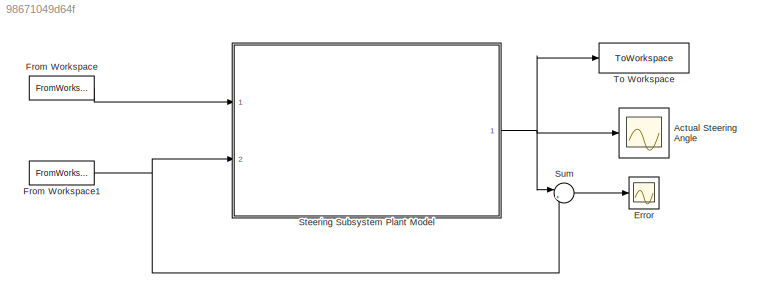
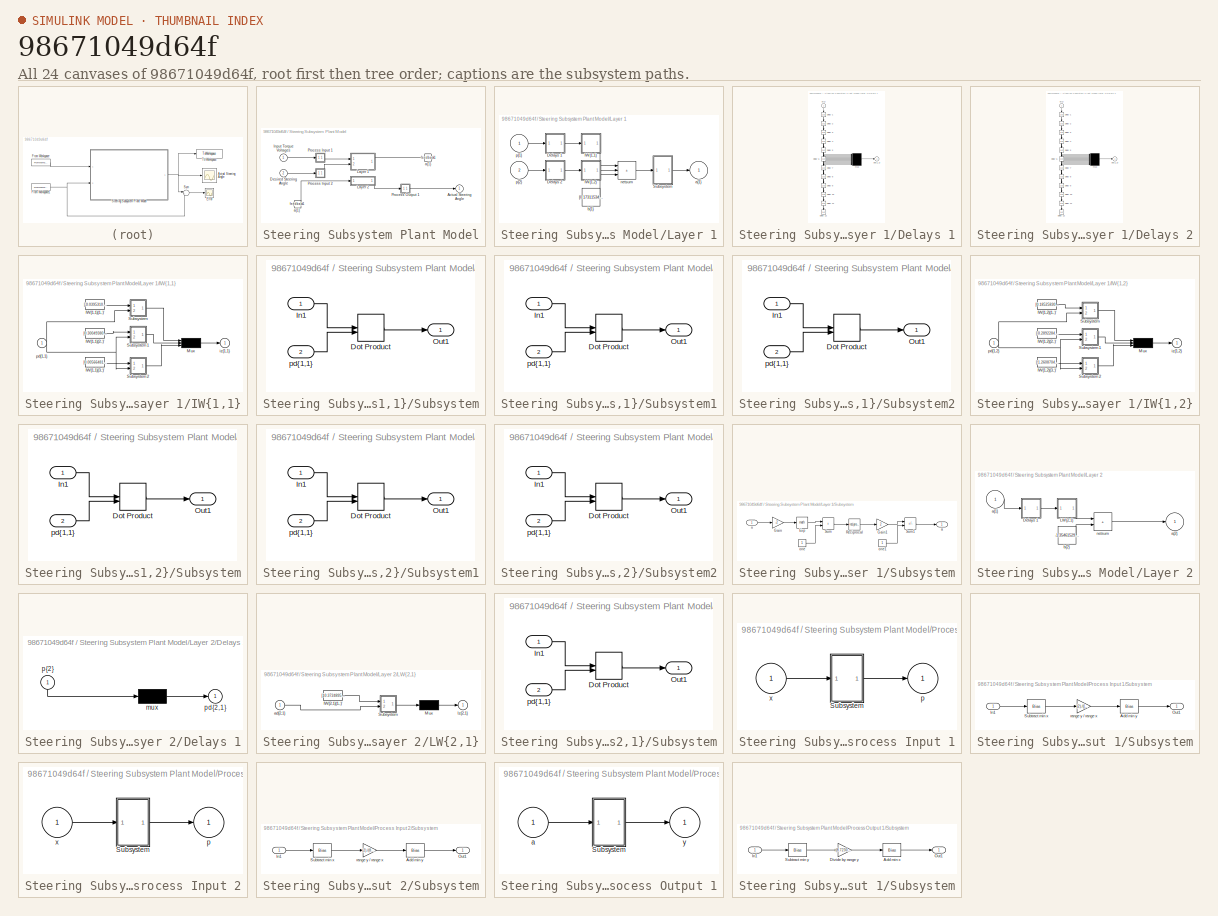
[diagram: thumbnail index - all 24 canvases of the model, root first then tree order]
MODEL slx_98671049d64f
KIND model
CONFIG AbsTol = auto
CONFIG EnableMultiTasking = off
CONFIG FixedStep = auto
CONFIG MaxStep = auto
CONFIG MinStep = auto
CONFIG RelTol = 1e-3
CONFIG SampleTimeConstraint = Unconstrained
CONFIG SolverName = VariableStepAuto
CONFIG StartTime = 0.0
CONFIG StopTime = 36
BLOCK [Scope] Actual Steering Angle
  Floating = off
  NumInputPorts = 1
  Ports = [1]
  ScopeSpecificationString = Simulink.scopes.TimeScopeBlockCfg('CurrentConfiguration', extmgr.ConfigurationSet(extmgr.Configuration('Core','General UI',true),extmgr.Configuration('Core','Source UI',true),extmgr.Configuration('Sources','WiredSimulink',true),extmgr.Configuration('Visuals','Time Domain',true,'SerializedDisplays',{struct('MinYLimReal','-24.47191','MaxYLimReal','14.88488','YLabelReal','','MinYLimMag','0.00000','Ma...<+1744ch>
BLOCK [Scope] Error
  Floating = off
  NumInputPorts = 1
  Ports = [1]
  ScopeSpecificationString = Simulink.scopes.TimeScopeBlockCfg('CurrentConfiguration', extmgr.ConfigurationSet(extmgr.Configuration('Core','General UI',true),extmgr.Configuration('Core','Source UI',true),extmgr.Configuration('Sources','WiredSimulink',true,'DataLoggingVariableName','ScopeData4'),extmgr.Configuration('Visuals','Time Domain',true,'SerializedDisplays',{struct('MinYLimReal','-0.19783','MaxYLimReal','0.17749','YLab...<+1437ch>
BLOCK [FromWorkspace] From Workspace
  SampleTime = 0.033
  VariableName = steeringlog
BLOCK [FromWorkspace] From Workspace1
  SampleTime = 0.033
  VariableName = steeringout
BLOCK [SubSystem] Steering Subsystem Plant Model
  Ports = [2, 1]
  RequestExecContextInheritance = off
BLOCK [From] Steering Subsystem Plant Model/ a{1} 
  GotoTag = feedback1
BLOCK [Outport] Steering Subsystem Plant Model/Actual Steering Angle
  InitialOutput = 0
BLOCK [Inport] Steering Subsystem Plant Model/Desired Steering Angle
  Port = 2
  PortDimensions = 1
BLOCK [Inport] Steering Subsystem Plant Model/Input Torque Voltages
  PortDimensions = 2
BLOCK [SubSystem] Steering Subsystem Plant Model/Layer 1
  Ports = [2, 1]
  RequestExecContextInheritance = off
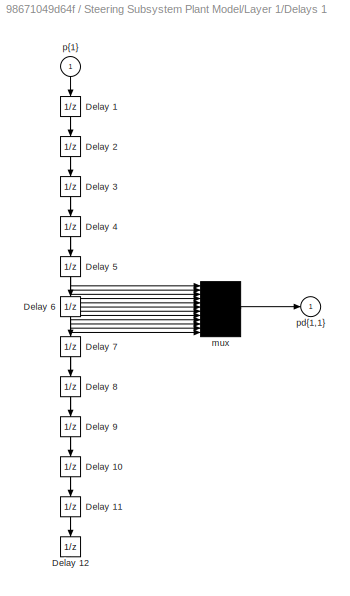
BLOCK [SubSystem] Steering Subsystem Plant Model/Layer 1/Delays 1
  Ports = [1, 1]
  RequestExecContextInheritance = off
BLOCK [UnitDelay] Steering Subsystem Plant Model/Layer 1/Delays 1/Delay 1
  InitialCondition = pi_input_1_delayed_1
  NameLocation = left
  SampleTime = -1
BLOCK [UnitDelay] Steering Subsystem Plant Model/Layer 1/Delays 1/Delay 10
  InitialCondition = pi_input_1_delayed_10
  NameLocation = left
  SampleTime = -1
BLOCK [UnitDelay] Steering Subsystem Plant Model/Layer 1/Delays 1/Delay 11
  InitialCondition = pi_input_1_delayed_11
  NameLocation = left
  SampleTime = -1
BLOCK [UnitDelay] Steering Subsystem Plant Model/Layer 1/Delays 1/Delay 12
  InitialCondition = pi_input_1_delayed_12
  NameLocation = left
  SampleTime = -1
BLOCK [UnitDelay] Steering Subsystem Plant Model/Layer 1/Delays 1/Delay 2
  InitialCondition = pi_input_1_delayed_2
  NameLocation = left
  SampleTime = -1
BLOCK [UnitDelay] Steering Subsystem Plant Model/Layer 1/Delays 1/Delay 3
  InitialCondition = pi_input_1_delayed_3
  NameLocation = left
  SampleTime = -1
BLOCK [UnitDelay] Steering Subsystem Plant Model/Layer 1/Delays 1/Delay 4
  InitialCondition = pi_input_1_delayed_4
  NameLocation = left
  SampleTime = -1
BLOCK [UnitDelay] Steering Subsystem Plant Model/Layer 1/Delays 1/Delay 5
  InitialCondition = pi_input_1_delayed_5
  NameLocation = left
  SampleTime = -1
BLOCK [UnitDelay] Steering Subsystem Plant Model/Layer 1/Delays 1/Delay 6
  InitialCondition = pi_input_1_delayed_6
  NameLocation = left
  SampleTime = -1
BLOCK [UnitDelay] Steering Subsystem Plant Model/Layer 1/Delays 1/Delay 7
  InitialCondition = pi_input_1_delayed_7
  NameLocation = left
  SampleTime = -1
BLOCK [UnitDelay] Steering Subsystem Plant Model/Layer 1/Delays 1/Delay 8
  InitialCondition = pi_input_1_delayed_8
  NameLocation = left
  SampleTime = -1
BLOCK [UnitDelay] Steering Subsystem Plant Model/Layer 1/Delays 1/Delay 9
  InitialCondition = pi_input_1_delayed_9
  NameLocation = left
  SampleTime = -1
BLOCK [Mux] Steering Subsystem Plant Model/Layer 1/Delays 1/mux
  Inputs = 12
  Ports = [12, 1]
BLOCK [Outport] Steering Subsystem Plant Model/Layer 1/Delays 1/pd{1,1}
BLOCK [Inport] Steering Subsystem Plant Model/Layer 1/Delays 1/p{1}
  NameLocation = left
  PortDimensions = 2
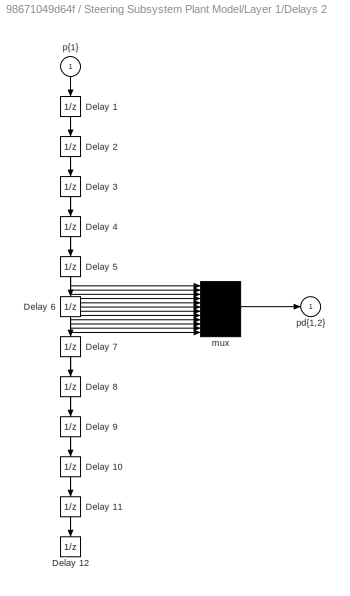
BLOCK [SubSystem] Steering Subsystem Plant Model/Layer 1/Delays 2
  Ports = [1, 1]
  RequestExecContextInheritance = off
BLOCK [UnitDelay] Steering Subsystem Plant Model/Layer 1/Delays 2/Delay 1
  InitialCondition = pi_input_2_delayed_1
  NameLocation = left
  SampleTime = -1
BLOCK [UnitDelay] Steering Subsystem Plant Model/Layer 1/Delays 2/Delay 10
  InitialCondition = pi_input_2_delayed_10
  NameLocation = left
  SampleTime = -1
BLOCK [UnitDelay] Steering Subsystem Plant Model/Layer 1/Delays 2/Delay 11
  InitialCondition = pi_input_2_delayed_11
  NameLocation = left
  SampleTime = -1
BLOCK [UnitDelay] Steering Subsystem Plant Model/Layer 1/Delays 2/Delay 12
  InitialCondition = pi_input_2_delayed_12
  NameLocation = left
  SampleTime = -1
BLOCK [UnitDelay] Steering Subsystem Plant Model/Layer 1/Delays 2/Delay 2
  InitialCondition = pi_input_2_delayed_2
  NameLocation = left
  SampleTime = -1
BLOCK [UnitDelay] Steering Subsystem Plant Model/Layer 1/Delays 2/Delay 3
  InitialCondition = pi_input_2_delayed_3
  NameLocation = left
  SampleTime = -1
BLOCK [UnitDelay] Steering Subsystem Plant Model/Layer 1/Delays 2/Delay 4
  InitialCondition = pi_input_2_delayed_4
  NameLocation = left
  SampleTime = -1
BLOCK [UnitDelay] Steering Subsystem Plant Model/Layer 1/Delays 2/Delay 5
  InitialCondition = pi_input_2_delayed_5
  NameLocation = left
  SampleTime = -1
BLOCK [UnitDelay] Steering Subsystem Plant Model/Layer 1/Delays 2/Delay 6
  InitialCondition = pi_input_2_delayed_6
  NameLocation = left
  SampleTime = -1
BLOCK [UnitDelay] Steering Subsystem Plant Model/Layer 1/Delays 2/Delay 7
  InitialCondition = pi_input_2_delayed_7
  NameLocation = left
  SampleTime = -1
BLOCK [UnitDelay] Steering Subsystem Plant Model/Layer 1/Delays 2/Delay 8
  InitialCondition = pi_input_2_delayed_8
  NameLocation = left
  SampleTime = -1
BLOCK [UnitDelay] Steering Subsystem Plant Model/Layer 1/Delays 2/Delay 9
  InitialCondition = pi_input_2_delayed_9
  NameLocation = left
  SampleTime = -1
BLOCK [Mux] Steering Subsystem Plant Model/Layer 1/Delays 2/mux
  Inputs = 12
  Ports = [12, 1]
BLOCK [Outport] Steering Subsystem Plant Model/Layer 1/Delays 2/pd{1,2}
BLOCK [Inport] Steering Subsystem Plant Model/Layer 1/Delays 2/p{1}
  NameLocation = left
  PortDimensions = 1
BLOCK [SubSystem] Steering Subsystem Plant Model/Layer 1/IW{1,1}
  Ports = [1, 1]
  RequestExecContextInheritance = off
BLOCK [Constant] Steering Subsystem Plant Model/Layer 1/IW{1,1}/IW{1,1}(1,:)'
  Value = [-0.039531069672798853364970028678726521320641040802001953125;-0.0383356031162210564300352189093246124684810638427734375;0.0258514399750559946411510026109681348316371440887451171875;0.04016755794020317182901891328583587892353534698486328125;0.02766231536147800706970656392513774335384368896484375;0.0303166326336630244375758280739319161511957645416259765625;0.0087272540060918633864073257200288935564...<+1052ch>
BLOCK [Constant] Steering Subsystem Plant Model/Layer 1/IW{1,1}/IW{1,1}(2,:)'
  Value = [0.300493806811286179314635091941454447805881500244140625;0.2906282354627103270416910163476131856441497802734375;-0.20524489213493646300179307218058966100215911865234375;-0.247446592053396974275614184080041013658046722412109375;-0.217516156689826767323125977782183326780796051025390625;-0.213925483436756824762170481335488148033618927001953125;-0.04639583892620995075883882918788003735244274139404296...<+989ch>
BLOCK [Constant] Steering Subsystem Plant Model/Layer 1/IW{1,1}/IW{1,1}(3,:)'
  Value = [0.005664811267568438390984653096893453039228916168212890625;-0.007588195356163471815003074283367823227308690547943115234375;-0.140245061154103733969122913549654185771942138671875;0.201420828649448380165409844266832806169986724853515625;-0.07728124705382323489377682790291146375238895416259765625;0.03786241173945463500682961921484093181788921356201171875;0.069274796945682975968239247777091804891824...<+1011ch>
BLOCK [Mux] Steering Subsystem Plant Model/Layer 1/IW{1,1}/Mux
  Inputs = 3
  Ports = [3, 1]
BLOCK [SubSystem] Steering Subsystem Plant Model/Layer 1/IW{1,1}/Subsystem
  Ports = [2, 1]
  RequestExecContextInheritance = off
BLOCK [DotProduct] Steering Subsystem Plant Model/Layer 1/IW{1,1}/Subsystem/Dot Product
  OutDataTypeStr = Inherit: Inherit via internal rule
BLOCK [Inport] Steering Subsystem Plant Model/Layer 1/IW{1,1}/Subsystem/In1
BLOCK [Outport] Steering Subsystem Plant Model/Layer 1/IW{1,1}/Subsystem/Out1
  VectorParamsAs1DForOutWhenUnconnected = off
BLOCK [Inport] Steering Subsystem Plant Model/Layer 1/IW{1,1}/Subsystem/pd{1,1}
  Port = 2
BLOCK [SubSystem] Steering Subsystem Plant Model/Layer 1/IW{1,1}/Subsystem1
  Ports = [2, 1]
  RequestExecContextInheritance = off
BLOCK [DotProduct] Steering Subsystem Plant Model/Layer 1/IW{1,1}/Subsystem1/Dot Product
  OutDataTypeStr = Inherit: Inherit via internal rule
BLOCK [Inport] Steering Subsystem Plant Model/Layer 1/IW{1,1}/Subsystem1/In1
BLOCK [Outport] Steering Subsystem Plant Model/Layer 1/IW{1,1}/Subsystem1/Out1
  VectorParamsAs1DForOutWhenUnconnected = off
BLOCK [Inport] Steering Subsystem Plant Model/Layer 1/IW{1,1}/Subsystem1/pd{1,1}
  Port = 2
BLOCK [SubSystem] Steering Subsystem Plant Model/Layer 1/IW{1,1}/Subsystem2
  Ports = [2, 1]
  RequestExecContextInheritance = off
BLOCK [DotProduct] Steering Subsystem Plant Model/Layer 1/IW{1,1}/Subsystem2/Dot Product
  OutDataTypeStr = Inherit: Inherit via internal rule
BLOCK [Inport] Steering Subsystem Plant Model/Layer 1/IW{1,1}/Subsystem2/In1
BLOCK [Outport] Steering Subsystem Plant Model/Layer 1/IW{1,1}/Subsystem2/Out1
  VectorParamsAs1DForOutWhenUnconnected = off
BLOCK [Inport] Steering Subsystem Plant Model/Layer 1/IW{1,1}/Subsystem2/pd{1,1}
  Port = 2
BLOCK [Outport] Steering Subsystem Plant Model/Layer 1/IW{1,1}/iz{1,1}
BLOCK [Inport] Steering Subsystem Plant Model/Layer 1/IW{1,1}/pd{1,1}
  PortDimensions = 24
BLOCK [SubSystem] Steering Subsystem Plant Model/Layer 1/IW{1,2}
  Ports = [1, 1]
  RequestExecContextInheritance = off
BLOCK [Constant] Steering Subsystem Plant Model/Layer 1/IW{1,2}/IW{1,2}(1,:)'
  Value = [0.18525830358054962143654620376764796674251556396484375;-0.06296079993389237794421120497645461000502109527587890625;-0.026864741354813446994054260130724287591874599456787109375;0.004920707395092008447357034839342304621823132038116455078125;0.000690318672413117902231238787180700455792248249053955078125;0.0656502235137236545003958099187002517282962799072265625;-0.07900536104101656131870612398415687...<+321ch>
BLOCK [Constant] Steering Subsystem Plant Model/Layer 1/IW{1,2}/IW{1,2}(2,:)'
  Value = [-0.2892284304667980254777148729772306978702545166015625;-0.144469847169483245341581323373247869312763214111328125;0.132050924434647776184448275671456940472126007080078125;0.185425035338810550999966153540299274027347564697265625;-0.01583121468960459188313194545116857625544071197509765625;-0.453294675076582331829655458932393230497837066650390625;0.590966671517218267162263600766891613602638244628906...<+279ch>
BLOCK [Constant] Steering Subsystem Plant Model/Layer 1/IW{1,2}/IW{1,2}(3,:)'
  Value = [-1.260870467974438469127562711946666240692138671875;-0.70408401856980862287826994361239485442638397216796875;0.135597500972626405779664082729141227900981903076171875;0.62336622325053980819831167536904104053974151611328125;0.6018519755574984753110356905381195247173309326171875;0.332602675447910389738837011464056558907032012939453125;0.090540711065608292518192001807619817554950714111328125;0.001732...<+293ch>
BLOCK [Mux] Steering Subsystem Plant Model/Layer 1/IW{1,2}/Mux
  Inputs = 3
  Ports = [3, 1]
BLOCK [SubSystem] Steering Subsystem Plant Model/Layer 1/IW{1,2}/Subsystem
  Ports = [2, 1]
  RequestExecContextInheritance = off
BLOCK [DotProduct] Steering Subsystem Plant Model/Layer 1/IW{1,2}/Subsystem/Dot Product
  OutDataTypeStr = Inherit: Inherit via internal rule
BLOCK [Inport] Steering Subsystem Plant Model/Layer 1/IW{1,2}/Subsystem/In1
BLOCK [Outport] Steering Subsystem Plant Model/Layer 1/IW{1,2}/Subsystem/Out1
  VectorParamsAs1DForOutWhenUnconnected = off
BLOCK [Inport] Steering Subsystem Plant Model/Layer 1/IW{1,2}/Subsystem/pd{1,1}
  Port = 2
BLOCK [SubSystem] Steering Subsystem Plant Model/Layer 1/IW{1,2}/Subsystem1
  Ports = [2, 1]
  RequestExecContextInheritance = off
BLOCK [DotProduct] Steering Subsystem Plant Model/Layer 1/IW{1,2}/Subsystem1/Dot Product
  OutDataTypeStr = Inherit: Inherit via internal rule
BLOCK [Inport] Steering Subsystem Plant Model/Layer 1/IW{1,2}/Subsystem1/In1
BLOCK [Outport] Steering Subsystem Plant Model/Layer 1/IW{1,2}/Subsystem1/Out1
  VectorParamsAs1DForOutWhenUnconnected = off
BLOCK [Inport] Steering Subsystem Plant Model/Layer 1/IW{1,2}/Subsystem1/pd{1,1}
  Port = 2
BLOCK [SubSystem] Steering Subsystem Plant Model/Layer 1/IW{1,2}/Subsystem2
  Ports = [2, 1]
  RequestExecContextInheritance = off
BLOCK [DotProduct] Steering Subsystem Plant Model/Layer 1/IW{1,2}/Subsystem2/Dot Product
  OutDataTypeStr = Inherit: Inherit via internal rule
BLOCK [Inport] Steering Subsystem Plant Model/Layer 1/IW{1,2}/Subsystem2/In1
BLOCK [Outport] Steering Subsystem Plant Model/Layer 1/IW{1,2}/Subsystem2/Out1
  VectorParamsAs1DForOutWhenUnconnected = off
BLOCK [Inport] Steering Subsystem Plant Model/Layer 1/IW{1,2}/Subsystem2/pd{1,1}
  Port = 2
BLOCK [Outport] Steering Subsystem Plant Model/Layer 1/IW{1,2}/iz{1,2}
BLOCK [Inport] Steering Subsystem Plant Model/Layer 1/IW{1,2}/pd{1,2}
  PortDimensions = 12
BLOCK [SubSystem] Steering Subsystem Plant Model/Layer 1/Subsystem
  Ports = [1, 1]
  RequestExecContextInheritance = off
BLOCK [Math] Steering Subsystem Plant Model/Layer 1/Subsystem/Exp
  Ports = [1, 1]
  SignedPower = on
BLOCK [Gain] Steering Subsystem Plant Model/Layer 1/Subsystem/Gain
  Gain = -2
  OutDataTypeStr = Inherit: Same as input
  ParamDataTypeStr = Inherit: Same as input
  SaturateOnIntegerOverflow = on
BLOCK [Gain] Steering Subsystem Plant Model/Layer 1/Subsystem/Gain1
  Gain = 2
  OutDataTypeStr = Inherit: Same as input
  ParamDataTypeStr = Inherit: Same as input
  SaturateOnIntegerOverflow = on
BLOCK [Math] Steering Subsystem Plant Model/Layer 1/Subsystem/Reciprocal
  Operator = reciprocal
  Ports = [1, 1]
  SignedPower = on
BLOCK [Sum] Steering Subsystem Plant Model/Layer 1/Subsystem/Sum
  IconShape = rectangular
  InputSameDT = on
  OutDataTypeStr = Inherit: Same as first input
  Ports = [2, 1]
  SaturateOnIntegerOverflow = on
BLOCK [Sum] Steering Subsystem Plant Model/Layer 1/Subsystem/Sum1
  IconShape = rectangular
  InputSameDT = on
  Inputs = +-
  OutDataTypeStr = Inherit: Same as first input
  Ports = [2, 1]
  SaturateOnIntegerOverflow = on
BLOCK [Outport] Steering Subsystem Plant Model/Layer 1/Subsystem/a
  InitialOutput = 0
  VectorParamsAs1DForOutWhenUnconnected = off
BLOCK [Inport] Steering Subsystem Plant Model/Layer 1/Subsystem/n
BLOCK [Constant] Steering Subsystem Plant Model/Layer 1/Subsystem/one
BLOCK [Constant] Steering Subsystem Plant Model/Layer 1/Subsystem/one1
BLOCK [Outport] Steering Subsystem Plant Model/Layer 1/a{1}
  InitialOutput = [0;0;0]
BLOCK [Constant] Steering Subsystem Plant Model/Layer 1/b{1}
  Value = [0.17311534232580039205373623190098442137241363525390625;-0.2904719849483103910614545384305529296398162841796875;-0.029234530767047968435878857462739688344299793243408203125]
BLOCK [Sum] Steering Subsystem Plant Model/Layer 1/netsum
  IconShape = rectangular
  InputSameDT = on
  Inputs = 3
  OutDataTypeStr = Inherit: Same as first input
  Ports = [3, 1]
  SaturateOnIntegerOverflow = on
BLOCK [Inport] Steering Subsystem Plant Model/Layer 1/p{1}
  PortDimensions = 2
BLOCK [Inport] Steering Subsystem Plant Model/Layer 1/p{2}
  Port = 2
  PortDimensions = 1
BLOCK [SubSystem] Steering Subsystem Plant Model/Layer 2
  Ports = [1, 1]
  RequestExecContextInheritance = off
BLOCK [SubSystem] Steering Subsystem Plant Model/Layer 2/Delays 1
  Ports = [1, 1]
  RequestExecContextInheritance = off
BLOCK [Mux] Steering Subsystem Plant Model/Layer 2/Delays 1/mux
  Inputs = 1
  Ports = [1, 1]
BLOCK [Outport] Steering Subsystem Plant Model/Layer 2/Delays 1/pd{2,1}
BLOCK [Inport] Steering Subsystem Plant Model/Layer 2/Delays 1/p{2}
  NameLocation = left
  PortDimensions = 3
BLOCK [SubSystem] Steering Subsystem Plant Model/Layer 2/LW{2,1}
  Ports = [1, 1]
  RequestExecContextInheritance = off
BLOCK [Constant] Steering Subsystem Plant Model/Layer 2/LW{2,1}/IW{2,1}(1,:)'
  Value = [10.372489506372101430997645366005599498748779296875;1.5243353237190262472466883991728536784648895263671875;-0.257200510664398585003453945319051854312419891357421875]
BLOCK [Mux] Steering Subsystem Plant Model/Layer 2/LW{2,1}/Mux
  Inputs = 1
  Ports = [1, 1]
BLOCK [SubSystem] Steering Subsystem Plant Model/Layer 2/LW{2,1}/Subsystem
  Ports = [2, 1]
  RequestExecContextInheritance = off
BLOCK [DotProduct] Steering Subsystem Plant Model/Layer 2/LW{2,1}/Subsystem/Dot Product
  OutDataTypeStr = Inherit: Inherit via internal rule
BLOCK [Inport] Steering Subsystem Plant Model/Layer 2/LW{2,1}/Subsystem/In1
BLOCK [Outport] Steering Subsystem Plant Model/Layer 2/LW{2,1}/Subsystem/Out1
  VectorParamsAs1DForOutWhenUnconnected = off
BLOCK [Inport] Steering Subsystem Plant Model/Layer 2/LW{2,1}/Subsystem/pd{1,1}
  Port = 2
BLOCK [Inport] Steering Subsystem Plant Model/Layer 2/LW{2,1}/ad{2,1}
  PortDimensions = 3
BLOCK [Outport] Steering Subsystem Plant Model/Layer 2/LW{2,1}/lz{2,1}
BLOCK [Inport] Steering Subsystem Plant Model/Layer 2/a{1} 
  PortDimensions = 3
BLOCK [Outport] Steering Subsystem Plant Model/Layer 2/a{2}
  InitialOutput = 0
BLOCK [Constant] Steering Subsystem Plant Model/Layer 2/b{2}
  Value = -1.3546152906763440082471561254351399838924407958984375
BLOCK [Sum] Steering Subsystem Plant Model/Layer 2/netsum
  IconShape = rectangular
  InputSameDT = on
  Inputs = 2
  OutDataTypeStr = Inherit: Same as first input
  Ports = [2, 1]
  SaturateOnIntegerOverflow = on
BLOCK [SubSystem] Steering Subsystem Plant Model/Process Input 1
  Ports = [1, 1]
  RequestExecContextInheritance = off
BLOCK [SubSystem] Steering Subsystem Plant Model/Process Input 1/Subsystem
  Ports = [1, 1]
  RequestExecContextInheritance = off
BLOCK [Bias] Steering Subsystem Plant Model/Process Input 1/Subsystem/Add min y
  Bias = -1
  SaturateOnIntegerOverflow = off
BLOCK [Inport] Steering Subsystem Plant Model/Process Input 1/Subsystem/In1
BLOCK [Outport] Steering Subsystem Plant Model/Process Input 1/Subsystem/Out1
BLOCK [Bias] Steering Subsystem Plant Model/Process Input 1/Subsystem/Subtract min x
  Bias = -[1.30299999999999993605115378159;1.3669999999999999928945726424]
  SaturateOnIntegerOverflow = off
BLOCK [Gain] Steering Subsystem Plant Model/Process Input 1/Subsystem/range y // range x
  Gain = (2)./([3.65499999999999980460074766597;3.69099999999999983657517077518]-[1.30299999999999993605115378159;1.3669999999999999928945726424])
BLOCK [Outport] Steering Subsystem Plant Model/Process Input 1/p
  PortDimensions = 2
BLOCK [Inport] Steering Subsystem Plant Model/Process Input 1/x
  PortDimensions = 2
BLOCK [SubSystem] Steering Subsystem Plant Model/Process Input 2
  Ports = [1, 1]
  RequestExecContextInheritance = off
BLOCK [SubSystem] Steering Subsystem Plant Model/Process Input 2/Subsystem
  Ports = [1, 1]
  RequestExecContextInheritance = off
BLOCK [Bias] Steering Subsystem Plant Model/Process Input 2/Subsystem/Add min y
  Bias = -1
  SaturateOnIntegerOverflow = off
BLOCK [Inport] Steering Subsystem Plant Model/Process Input 2/Subsystem/In1
BLOCK [Outport] Steering Subsystem Plant Model/Process Input 2/Subsystem/Out1
BLOCK [Bias] Steering Subsystem Plant Model/Process Input 2/Subsystem/Subtract min x
  Bias = -(-8.62199999999999988631316227838)
  SaturateOnIntegerOverflow = off
BLOCK [Gain] Steering Subsystem Plant Model/Process Input 2/Subsystem/range y // range x
  Gain = (2)./(8.72300000000000075317529990571-(-8.62199999999999988631316227838))
BLOCK [Outport] Steering Subsystem Plant Model/Process Input 2/p
  PortDimensions = 1
BLOCK [Inport] Steering Subsystem Plant Model/Process Input 2/x
  PortDimensions = 1
BLOCK [SubSystem] Steering Subsystem Plant Model/Process Output 1
  Ports = [1, 1]
  RequestExecContextInheritance = off
BLOCK [SubSystem] Steering Subsystem Plant Model/Process Output 1/Subsystem
  Ports = [1, 1]
  RequestExecContextInheritance = off
BLOCK [Bias] Steering Subsystem Plant Model/Process Output 1/Subsystem/Add min x
  Bias = -8.62199999999999988631316227838
  SaturateOnIntegerOverflow = off
BLOCK [Gain] Steering Subsystem Plant Model/Process Output 1/Subsystem/Divide by range y
  Gain = (8.72300000000000075317529990571-(-8.62199999999999988631316227838))./(2)
BLOCK [Inport] Steering Subsystem Plant Model/Process Output 1/Subsystem/In1
BLOCK [Outport] Steering Subsystem Plant Model/Process Output 1/Subsystem/Out1
BLOCK [Bias] Steering Subsystem Plant Model/Process Output 1/Subsystem/Subtract min y
  Bias = 1
  SaturateOnIntegerOverflow = off
BLOCK [Inport] Steering Subsystem Plant Model/Process Output 1/a
  PortDimensions = 1
BLOCK [Outport] Steering Subsystem Plant Model/Process Output 1/y
  PortDimensions = 1
BLOCK [Goto] Steering Subsystem Plant Model/a{1}
  GotoTag = feedback1
BLOCK [Sum] Sum
  Inputs = |+-
  Ports = [2, 1]
BLOCK [ToWorkspace] To Workspace
  FixptAsFi = on
  MaxDataPoints = inf
  Ports = [1]
  SampleTime = -1
  SaveFormat = Timeseries
  VariableName = actualsteering
NET From Workspace1:1 -> Steering Subsystem Plant Model:2, Sum:2
LINE From Workspace:1 -> Steering Subsystem Plant Model:1
LINE Steering Subsystem Plant Model/ a{1} :1 -> Steering Subsystem Plant Model/Layer 2:1
LINE Steering Subsystem Plant Model/Desired Steering Angle:1 -> Steering Subsystem Plant Model/Process Input 2:1
LINE Steering Subsystem Plant Model/Input Torque Voltages:1 -> Steering Subsystem Plant Model/Process Input 1:1
NET Steering Subsystem Plant Model/Layer 1/Delays 1/Delay 10:1 -> Steering Subsystem Plant Model/Layer 1/Delays 1/Delay 11:1, Steering Subsystem Plant Model/Layer 1/Delays 1/mux:10
NET Steering Subsystem Plant Model/Layer 1/Delays 1/Delay 11:1 -> Steering Subsystem Plant Model/Layer 1/Delays 1/Delay 12:1, Steering Subsystem Plant Model/Layer 1/Delays 1/mux:11
LINE Steering Subsystem Plant Model/Layer 1/Delays 1/Delay 12:1 -> Steering Subsystem Plant Model/Layer 1/Delays 1/mux:12
NET Steering Subsystem Plant Model/Layer 1/Delays 1/Delay 1:1 -> Steering Subsystem Plant Model/Layer 1/Delays 1/Delay 2:1, Steering Subsystem Plant Model/Layer 1/Delays 1/mux:1
NET Steering Subsystem Plant Model/Layer 1/Delays 1/Delay 2:1 -> Steering Subsystem Plant Model/Layer 1/Delays 1/Delay 3:1, Steering Subsystem Plant Model/Layer 1/Delays 1/mux:2
NET Steering Subsystem Plant Model/Layer 1/Delays 1/Delay 3:1 -> Steering Subsystem Plant Model/Layer 1/Delays 1/Delay 4:1, Steering Subsystem Plant Model/Layer 1/Delays 1/mux:3
NET Steering Subsystem Plant Model/Layer 1/Delays 1/Delay 4:1 -> Steering Subsystem Plant Model/Layer 1/Delays 1/Delay 5:1, Steering Subsystem Plant Model/Layer 1/Delays 1/mux:4
NET Steering Subsystem Plant Model/Layer 1/Delays 1/Delay 5:1 -> Steering Subsystem Plant Model/Layer 1/Delays 1/Delay 6:1, Steering Subsystem Plant Model/Layer 1/Delays 1/mux:5
NET Steering Subsystem Plant Model/Layer 1/Delays 1/Delay 6:1 -> Steering Subsystem Plant Model/Layer 1/Delays 1/Delay 7:1, Steering Subsystem Plant Model/Layer 1/Delays 1/mux:6
NET Steering Subsystem Plant Model/Layer 1/Delays 1/Delay 7:1 -> Steering Subsystem Plant Model/Layer 1/Delays 1/Delay 8:1, Steering Subsystem Plant Model/Layer 1/Delays 1/mux:7
NET Steering Subsystem Plant Model/Layer 1/Delays 1/Delay 8:1 -> Steering Subsystem Plant Model/Layer 1/Delays 1/Delay 9:1, Steering Subsystem Plant Model/Layer 1/Delays 1/mux:8
NET Steering Subsystem Plant Model/Layer 1/Delays 1/Delay 9:1 -> Steering Subsystem Plant Model/Layer 1/Delays 1/Delay 10:1, Steering Subsystem Plant Model/Layer 1/Delays 1/mux:9
LINE Steering Subsystem Plant Model/Layer 1/Delays 1/mux:1 -> Steering Subsystem Plant Model/Layer 1/Delays 1/pd{1,1}:1
LINE Steering Subsystem Plant Model/Layer 1/Delays 1/p{1}:1 -> Steering Subsystem Plant Model/Layer 1/Delays 1/Delay 1:1
LINE Steering Subsystem Plant Model/Layer 1/Delays 1:1 -> Steering Subsystem Plant Model/Layer 1/IW{1,1}:1
NET Steering Subsystem Plant Model/Layer 1/Delays 2/Delay 10:1 -> Steering Subsystem Plant Model/Layer 1/Delays 2/Delay 11:1, Steering Subsystem Plant Model/Layer 1/Delays 2/mux:10
NET Steering Subsystem Plant Model/Layer 1/Delays 2/Delay 11:1 -> Steering Subsystem Plant Model/Layer 1/Delays 2/Delay 12:1, Steering Subsystem Plant Model/Layer 1/Delays 2/mux:11
LINE Steering Subsystem Plant Model/Layer 1/Delays 2/Delay 12:1 -> Steering Subsystem Plant Model/Layer 1/Delays 2/mux:12
NET Steering Subsystem Plant Model/Layer 1/Delays 2/Delay 1:1 -> Steering Subsystem Plant Model/Layer 1/Delays 2/Delay 2:1, Steering Subsystem Plant Model/Layer 1/Delays 2/mux:1
NET Steering Subsystem Plant Model/Layer 1/Delays 2/Delay 2:1 -> Steering Subsystem Plant Model/Layer 1/Delays 2/Delay 3:1, Steering Subsystem Plant Model/Layer 1/Delays 2/mux:2
NET Steering Subsystem Plant Model/Layer 1/Delays 2/Delay 3:1 -> Steering Subsystem Plant Model/Layer 1/Delays 2/Delay 4:1, Steering Subsystem Plant Model/Layer 1/Delays 2/mux:3
NET Steering Subsystem Plant Model/Layer 1/Delays 2/Delay 4:1 -> Steering Subsystem Plant Model/Layer 1/Delays 2/Delay 5:1, Steering Subsystem Plant Model/Layer 1/Delays 2/mux:4
NET Steering Subsystem Plant Model/Layer 1/Delays 2/Delay 5:1 -> Steering Subsystem Plant Model/Layer 1/Delays 2/Delay 6:1, Steering Subsystem Plant Model/Layer 1/Delays 2/mux:5
NET Steering Subsystem Plant Model/Layer 1/Delays 2/Delay 6:1 -> Steering Subsystem Plant Model/Layer 1/Delays 2/Delay 7:1, Steering Subsystem Plant Model/Layer 1/Delays 2/mux:6
NET Steering Subsystem Plant Model/Layer 1/Delays 2/Delay 7:1 -> Steering Subsystem Plant Model/Layer 1/Delays 2/Delay 8:1, Steering Subsystem Plant Model/Layer 1/Delays 2/mux:7
NET Steering Subsystem Plant Model/Layer 1/Delays 2/Delay 8:1 -> Steering Subsystem Plant Model/Layer 1/Delays 2/Delay 9:1, Steering Subsystem Plant Model/Layer 1/Delays 2/mux:8
NET Steering Subsystem Plant Model/Layer 1/Delays 2/Delay 9:1 -> Steering Subsystem Plant Model/Layer 1/Delays 2/Delay 10:1, Steering Subsystem Plant Model/Layer 1/Delays 2/mux:9
LINE Steering Subsystem Plant Model/Layer 1/Delays 2/mux:1 -> Steering Subsystem Plant Model/Layer 1/Delays 2/pd{1,2}:1
LINE Steering Subsystem Plant Model/Layer 1/Delays 2/p{1}:1 -> Steering Subsystem Plant Model/Layer 1/Delays 2/Delay 1:1
LINE Steering Subsystem Plant Model/Layer 1/Delays 2:1 -> Steering Subsystem Plant Model/Layer 1/IW{1,2}:1
LINE Steering Subsystem Plant Model/Layer 1/IW{1,1}/IW{1,1}(1,:)':1 -> Steering Subsystem Plant Model/Layer 1/IW{1,1}/Subsystem:1
LINE Steering Subsystem Plant Model/Layer 1/IW{1,1}/IW{1,1}(2,:)':1 -> Steering Subsystem Plant Model/Layer 1/IW{1,1}/Subsystem1:1
LINE Steering Subsystem Plant Model/Layer 1/IW{1,1}/IW{1,1}(3,:)':1 -> Steering Subsystem Plant Model/Layer 1/IW{1,1}/Subsystem2:1
LINE Steering Subsystem Plant Model/Layer 1/IW{1,1}/Mux:1 -> Steering Subsystem Plant Model/Layer 1/IW{1,1}/iz{1,1}:1
LINE Steering Subsystem Plant Model/Layer 1/IW{1,1}/Subsystem/Dot Product:1 -> Steering Subsystem Plant Model/Layer 1/IW{1,1}/Subsystem/Out1:1
LINE Steering Subsystem Plant Model/Layer 1/IW{1,1}/Subsystem/In1:1 -> Steering Subsystem Plant Model/Layer 1/IW{1,1}/Subsystem/Dot Product:1
LINE Steering Subsystem Plant Model/Layer 1/IW{1,1}/Subsystem/pd{1,1}:1 -> Steering Subsystem Plant Model/Layer 1/IW{1,1}/Subsystem/Dot Product:2
LINE Steering Subsystem Plant Model/Layer 1/IW{1,1}/Subsystem1/Dot Product:1 -> Steering Subsystem Plant Model/Layer 1/IW{1,1}/Subsystem1/Out1:1
LINE Steering Subsystem Plant Model/Layer 1/IW{1,1}/Subsystem1/In1:1 -> Steering Subsystem Plant Model/Layer 1/IW{1,1}/Subsystem1/Dot Product:1
LINE Steering Subsystem Plant Model/Layer 1/IW{1,1}/Subsystem1/pd{1,1}:1 -> Steering Subsystem Plant Model/Layer 1/IW{1,1}/Subsystem1/Dot Product:2
LINE Steering Subsystem Plant Model/Layer 1/IW{1,1}/Subsystem1:1 -> Steering Subsystem Plant Model/Layer 1/IW{1,1}/Mux:2
LINE Steering Subsystem Plant Model/Layer 1/IW{1,1}/Subsystem2/Dot Product:1 -> Steering Subsystem Plant Model/Layer 1/IW{1,1}/Subsystem2/Out1:1
LINE Steering Subsystem Plant Model/Layer 1/IW{1,1}/Subsystem2/In1:1 -> Steering Subsystem Plant Model/Layer 1/IW{1,1}/Subsystem2/Dot Product:1
LINE Steering Subsystem Plant Model/Layer 1/IW{1,1}/Subsystem2/pd{1,1}:1 -> Steering Subsystem Plant Model/Layer 1/IW{1,1}/Subsystem2/Dot Product:2
LINE Steering Subsystem Plant Model/Layer 1/IW{1,1}/Subsystem2:1 -> Steering Subsystem Plant Model/Layer 1/IW{1,1}/Mux:3
LINE Steering Subsystem Plant Model/Layer 1/IW{1,1}/Subsystem:1 -> Steering Subsystem Plant Model/Layer 1/IW{1,1}/Mux:1
NET Steering Subsystem Plant Model/Layer 1/IW{1,1}/pd{1,1}:1 -> Steering Subsystem Plant Model/Layer 1/IW{1,1}/Subsystem1:2, Steering Subsystem Plant Model/Layer 1/IW{1,1}/Subsystem2:2, Steering Subsystem Plant Model/Layer 1/IW{1,1}/Subsystem:2
LINE Steering Subsystem Plant Model/Layer 1/IW{1,1}:1 -> Steering Subsystem Plant Model/Layer 1/netsum:1
LINE Steering Subsystem Plant Model/Layer 1/IW{1,2}/IW{1,2}(1,:)':1 -> Steering Subsystem Plant Model/Layer 1/IW{1,2}/Subsystem:1
LINE Steering Subsystem Plant Model/Layer 1/IW{1,2}/IW{1,2}(2,:)':1 -> Steering Subsystem Plant Model/Layer 1/IW{1,2}/Subsystem1:1
LINE Steering Subsystem Plant Model/Layer 1/IW{1,2}/IW{1,2}(3,:)':1 -> Steering Subsystem Plant Model/Layer 1/IW{1,2}/Subsystem2:1
LINE Steering Subsystem Plant Model/Layer 1/IW{1,2}/Mux:1 -> Steering Subsystem Plant Model/Layer 1/IW{1,2}/iz{1,2}:1
LINE Steering Subsystem Plant Model/Layer 1/IW{1,2}/Subsystem/Dot Product:1 -> Steering Subsystem Plant Model/Layer 1/IW{1,2}/Subsystem/Out1:1
LINE Steering Subsystem Plant Model/Layer 1/IW{1,2}/Subsystem/In1:1 -> Steering Subsystem Plant Model/Layer 1/IW{1,2}/Subsystem/Dot Product:1
LINE Steering Subsystem Plant Model/Layer 1/IW{1,2}/Subsystem/pd{1,1}:1 -> Steering Subsystem Plant Model/Layer 1/IW{1,2}/Subsystem/Dot Product:2
LINE Steering Subsystem Plant Model/Layer 1/IW{1,2}/Subsystem1/Dot Product:1 -> Steering Subsystem Plant Model/Layer 1/IW{1,2}/Subsystem1/Out1:1
LINE Steering Subsystem Plant Model/Layer 1/IW{1,2}/Subsystem1/In1:1 -> Steering Subsystem Plant Model/Layer 1/IW{1,2}/Subsystem1/Dot Product:1
LINE Steering Subsystem Plant Model/Layer 1/IW{1,2}/Subsystem1/pd{1,1}:1 -> Steering Subsystem Plant Model/Layer 1/IW{1,2}/Subsystem1/Dot Product:2
LINE Steering Subsystem Plant Model/Layer 1/IW{1,2}/Subsystem1:1 -> Steering Subsystem Plant Model/Layer 1/IW{1,2}/Mux:2
LINE Steering Subsystem Plant Model/Layer 1/IW{1,2}/Subsystem2/Dot Product:1 -> Steering Subsystem Plant Model/Layer 1/IW{1,2}/Subsystem2/Out1:1
LINE Steering Subsystem Plant Model/Layer 1/IW{1,2}/Subsystem2/In1:1 -> Steering Subsystem Plant Model/Layer 1/IW{1,2}/Subsystem2/Dot Product:1
LINE Steering Subsystem Plant Model/Layer 1/IW{1,2}/Subsystem2/pd{1,1}:1 -> Steering Subsystem Plant Model/Layer 1/IW{1,2}/Subsystem2/Dot Product:2
LINE Steering Subsystem Plant Model/Layer 1/IW{1,2}/Subsystem2:1 -> Steering Subsystem Plant Model/Layer 1/IW{1,2}/Mux:3
LINE Steering Subsystem Plant Model/Layer 1/IW{1,2}/Subsystem:1 -> Steering Subsystem Plant Model/Layer 1/IW{1,2}/Mux:1
NET Steering Subsystem Plant Model/Layer 1/IW{1,2}/pd{1,2}:1 -> Steering Subsystem Plant Model/Layer 1/IW{1,2}/Subsystem1:2, Steering Subsystem Plant Model/Layer 1/IW{1,2}/Subsystem2:2, Steering Subsystem Plant Model/Layer 1/IW{1,2}/Subsystem:2
LINE Steering Subsystem Plant Model/Layer 1/IW{1,2}:1 -> Steering Subsystem Plant Model/Layer 1/netsum:2
LINE Steering Subsystem Plant Model/Layer 1/Subsystem/Exp:1 -> Steering Subsystem Plant Model/Layer 1/Subsystem/Sum:1
LINE Steering Subsystem Plant Model/Layer 1/Subsystem/Gain1:1 -> Steering Subsystem Plant Model/Layer 1/Subsystem/Sum1:1
LINE Steering Subsystem Plant Model/Layer 1/Subsystem/Gain:1 -> Steering Subsystem Plant Model/Layer 1/Subsystem/Exp:1
LINE Steering Subsystem Plant Model/Layer 1/Subsystem/Reciprocal:1 -> Steering Subsystem Plant Model/Layer 1/Subsystem/Gain1:1
LINE Steering Subsystem Plant Model/Layer 1/Subsystem/Sum1:1 -> Steering Subsystem Plant Model/Layer 1/Subsystem/a:1
LINE Steering Subsystem Plant Model/Layer 1/Subsystem/Sum:1 -> Steering Subsystem Plant Model/Layer 1/Subsystem/Reciprocal:1
LINE Steering Subsystem Plant Model/Layer 1/Subsystem/n:1 -> Steering Subsystem Plant Model/Layer 1/Subsystem/Gain:1
LINE Steering Subsystem Plant Model/Layer 1/Subsystem/one1:1 -> Steering Subsystem Plant Model/Layer 1/Subsystem/Sum1:2
LINE Steering Subsystem Plant Model/Layer 1/Subsystem/one:1 -> Steering Subsystem Plant Model/Layer 1/Subsystem/Sum:2
LINE Steering Subsystem Plant Model/Layer 1/Subsystem:1 -> Steering Subsystem Plant Model/Layer 1/a{1}:1
LINE Steering Subsystem Plant Model/Layer 1/b{1}:1 -> Steering Subsystem Plant Model/Layer 1/netsum:3
LINE Steering Subsystem Plant Model/Layer 1/netsum:1 -> Steering Subsystem Plant Model/Layer 1/Subsystem:1
LINE Steering Subsystem Plant Model/Layer 1/p{1}:1 -> Steering Subsystem Plant Model/Layer 1/Delays 1:1
LINE Steering Subsystem Plant Model/Layer 1/p{2}:1 -> Steering Subsystem Plant Model/Layer 1/Delays 2:1
LINE Steering Subsystem Plant Model/Layer 1:1 -> Steering Subsystem Plant Model/a{1}:1
LINE Steering Subsystem Plant Model/Layer 2/Delays 1/mux:1 -> Steering Subsystem Plant Model/Layer 2/Delays 1/pd{2,1}:1
LINE Steering Subsystem Plant Model/Layer 2/Delays 1/p{2}:1 -> Steering Subsystem Plant Model/Layer 2/Delays 1/mux:1
LINE Steering Subsystem Plant Model/Layer 2/Delays 1:1 -> Steering Subsystem Plant Model/Layer 2/LW{2,1}:1
LINE Steering Subsystem Plant Model/Layer 2/LW{2,1}/IW{2,1}(1,:)':1 -> Steering Subsystem Plant Model/Layer 2/LW{2,1}/Subsystem:1
LINE Steering Subsystem Plant Model/Layer 2/LW{2,1}/Mux:1 -> Steering Subsystem Plant Model/Layer 2/LW{2,1}/lz{2,1}:1
LINE Steering Subsystem Plant Model/Layer 2/LW{2,1}/Subsystem/Dot Product:1 -> Steering Subsystem Plant Model/Layer 2/LW{2,1}/Subsystem/Out1:1
LINE Steering Subsystem Plant Model/Layer 2/LW{2,1}/Subsystem/In1:1 -> Steering Subsystem Plant Model/Layer 2/LW{2,1}/Subsystem/Dot Product:1
LINE Steering Subsystem Plant Model/Layer 2/LW{2,1}/Subsystem/pd{1,1}:1 -> Steering Subsystem Plant Model/Layer 2/LW{2,1}/Subsystem/Dot Product:2
LINE Steering Subsystem Plant Model/Layer 2/LW{2,1}/Subsystem:1 -> Steering Subsystem Plant Model/Layer 2/LW{2,1}/Mux:1
LINE Steering Subsystem Plant Model/Layer 2/LW{2,1}/ad{2,1}:1 -> Steering Subsystem Plant Model/Layer 2/LW{2,1}/Subsystem:2
LINE Steering Subsystem Plant Model/Layer 2/LW{2,1}:1 -> Steering Subsystem Plant Model/Layer 2/netsum:1
LINE Steering Subsystem Plant Model/Layer 2/a{1} :1 -> Steering Subsystem Plant Model/Layer 2/Delays 1:1
LINE Steering Subsystem Plant Model/Layer 2/b{2}:1 -> Steering Subsystem Plant Model/Layer 2/netsum:2
LINE Steering Subsystem Plant Model/Layer 2/netsum:1 -> Steering Subsystem Plant Model/Layer 2/a{2}:1
LINE Steering Subsystem Plant Model/Layer 2:1 -> Steering Subsystem Plant Model/Process Output 1:1
LINE Steering Subsystem Plant Model/Process Input 1/Subsystem/Add min y:1 -> Steering Subsystem Plant Model/Process Input 1/Subsystem/Out1:1
LINE Steering Subsystem Plant Model/Process Input 1/Subsystem/In1:1 -> Steering Subsystem Plant Model/Process Input 1/Subsystem/Subtract min x:1
LINE Steering Subsystem Plant Model/Process Input 1/Subsystem/Subtract min x:1 -> Steering Subsystem Plant Model/Process Input 1/Subsystem/range y // range x:1
LINE Steering Subsystem Plant Model/Process Input 1/Subsystem/range y // range x:1 -> Steering Subsystem Plant Model/Process Input 1/Subsystem/Add min y:1
LINE Steering Subsystem Plant Model/Process Input 1/Subsystem:1 -> Steering Subsystem Plant Model/Process Input 1/p:1
LINE Steering Subsystem Plant Model/Process Input 1/x:1 -> Steering Subsystem Plant Model/Process Input 1/Subsystem:1
LINE Steering Subsystem Plant Model/Process Input 1:1 -> Steering Subsystem Plant Model/Layer 1:1
LINE Steering Subsystem Plant Model/Process Input 2/Subsystem/Add min y:1 -> Steering Subsystem Plant Model/Process Input 2/Subsystem/Out1:1
LINE Steering Subsystem Plant Model/Process Input 2/Subsystem/In1:1 -> Steering Subsystem Plant Model/Process Input 2/Subsystem/Subtract min x:1
LINE Steering Subsystem Plant Model/Process Input 2/Subsystem/Subtract min x:1 -> Steering Subsystem Plant Model/Process Input 2/Subsystem/range y // range x:1
LINE Steering Subsystem Plant Model/Process Input 2/Subsystem/range y // range x:1 -> Steering Subsystem Plant Model/Process Input 2/Subsystem/Add min y:1
LINE Steering Subsystem Plant Model/Process Input 2/Subsystem:1 -> Steering Subsystem Plant Model/Process Input 2/p:1
LINE Steering Subsystem Plant Model/Process Input 2/x:1 -> Steering Subsystem Plant Model/Process Input 2/Subsystem:1
LINE Steering Subsystem Plant Model/Process Input 2:1 -> Steering Subsystem Plant Model/Layer 1:2
LINE Steering Subsystem Plant Model/Process Output 1/Subsystem/Add min x:1 -> Steering Subsystem Plant Model/Process Output 1/Subsystem/Out1:1
LINE Steering Subsystem Plant Model/Process Output 1/Subsystem/Divide by range y:1 -> Steering Subsystem Plant Model/Process Output 1/Subsystem/Add min x:1
LINE Steering Subsystem Plant Model/Process Output 1/Subsystem/In1:1 -> Steering Subsystem Plant Model/Process Output 1/Subsystem/Subtract min y:1
LINE Steering Subsystem Plant Model/Process Output 1/Subsystem/Subtract min y:1 -> Steering Subsystem Plant Model/Process Output 1/Subsystem/Divide by range y:1
LINE Steering Subsystem Plant Model/Process Output 1/Subsystem:1 -> Steering Subsystem Plant Model/Process Output 1/y:1
LINE Steering Subsystem Plant Model/Process Output 1/a:1 -> Steering Subsystem Plant Model/Process Output 1/Subsystem:1
LINE Steering Subsystem Plant Model/Process Output 1:1 -> Steering Subsystem Plant Model/Actual Steering Angle:1
NET Steering Subsystem Plant Model:1 -> Actual Steering Angle:1, Sum:1, To Workspace:1
LINE Sum:1 -> Error:1
note: NET lines group one-source signal fan-out (src -> all destinations, sorted); 1:1 wires keep LINE
